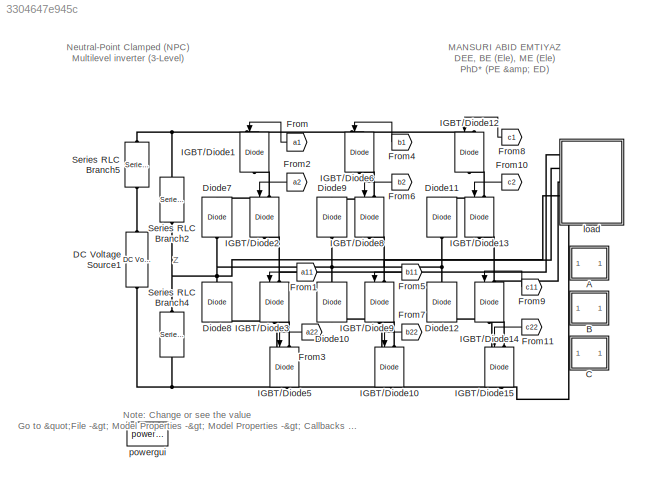
MODEL slx_3304647e945c
KIND model
CONFIG AbsTol = auto
CONFIG EnableMultiTasking = off
CONFIG FixedStep = 1e-6
CONFIG InitFcn = v=3000\nr=0.000001\nc=1000e-6\nl=314\ni=1000\nr1=1000\nt=1/3000\nma=2\nf=2*pi*50\np1=(2*pi)/3\np2=-(2*pi)/3
CONFIG MaxStep = 1e-4
CONFIG MinStep = auto
CONFIG RelTol = 1e-3
CONFIG SampleTimeConstraint = Unconstrained
CONFIG Solver = ode4
CONFIG SolverName = ode4
CONFIG StartTime = 0.0
CONFIG StopTime = 0.04
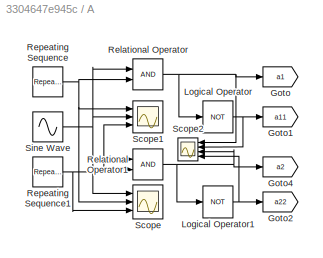
BLOCK [SubSystem] A
  Ports = []
  RequestExecContextInheritance = off
  Variant = off
BLOCK [Goto] A/Goto
  GotoTag = a1
  TagVisibility = global
BLOCK [Goto] A/Goto1
  GotoTag = a11
  TagVisibility = global
BLOCK [Goto] A/Goto2
  GotoTag = a22
  TagVisibility = global
BLOCK [Goto] A/Goto4
  GotoTag = a2
  TagVisibility = global
BLOCK [Logic] A/Logical Operator
  AllPortsSameDT = off
  Operator = NOT
  OutDataTypeStr = boolean
  Ports = [1, 1]
BLOCK [Logic] A/Logical Operator1
  AllPortsSameDT = off
  Operator = NOT
  OutDataTypeStr = boolean
  Ports = [1, 1]
BLOCK [RelationalOperator] A/Relational Operator
  InputSameDT = off
  OutDataTypeStr = boolean
  Ports = [2, 1]
  RndMeth = Simplest
BLOCK [RelationalOperator] A/Relational Operator1
  InputSameDT = off
  OutDataTypeStr = boolean
  Ports = [2, 1]
  RndMeth = Simplest
BLOCK [Reference] A/Repeating Sequence  REF=simulink/Sources/Repeating
Sequence
  Ports = [0, 1]
  SourceBlock = simulink/Sources/Repeating\nSequence
  SourceProductBaseCode = SL
  SourceProductName = Simulink
  SourceType = Repeating table
BLOCK [Reference] A/Repeating Sequence1  REF=simulink/Sources/Repeating
Sequence
  Ports = [0, 1]
  SourceBlock = simulink/Sources/Repeating\nSequence
  SourceProductBaseCode = SL
  SourceProductName = Simulink
  SourceType = Repeating table
BLOCK [Scope] A/Scope
  NumInputPorts = 3
  Ports = [3]
  ScopeSpecificationString = Simulink.scopes.TimeScopeBlockCfg('CurrentConfiguration', extmgr.ConfigurationSet(extmgr.Configuration('Core','General UI',true),extmgr.Configuration('Core','Source UI',true),extmgr.Configuration('Sources','WiredSimulink',true,'DataLoggingVariableName','ScopeData1'),extmgr.Configuration('Visuals','Time Domain',true,'SerializedDisplays',{struct('MinYLimReal','-2.5','MaxYLimReal','2.5','YLabelReal',...<+1414ch>
BLOCK [Scope] A/Scope1
  NumInputPorts = 3
  Ports = [3]
  ScopeSpecificationString = Simulink.scopes.TimeScopeBlockCfg('CurrentConfiguration', extmgr.ConfigurationSet(extmgr.Configuration('Core','General UI',true,'FigureColor',[1 1 1]),extmgr.Configuration('Core','Source UI',true),extmgr.Configuration('Sources','WiredSimulink',true,'DataLoggingVariableName','ScopeData1'),extmgr.Configuration('Visuals','Time Domain',true,'TimeAxisLabels','All','SerializedDisplays',{struct('MinYLimR...<+1810ch>
BLOCK [Scope] A/Scope2
  NumInputPorts = 4
  Ports = [4]
  ScopeSpecificationString = Simulink.scopes.TimeScopeBlockCfg('CurrentConfiguration', extmgr.ConfigurationSet(extmgr.Configuration('Core','General UI',true,'FigureColor',[1 1 1]),extmgr.Configuration('Core','Source UI',true),extmgr.Configuration('Sources','WiredSimulink',true,'DataLoggingVariableName','ScopeData2'),extmgr.Configuration('Visuals','Time Domain',true,'TimeAxisLabels','All','SerializedDisplays',{struct('MinYLimR...<+3983ch>
BLOCK [Sin] A/Sine Wave
  Amplitude = ma
  Frequency = f
  Ports = [0, 1]
  SampleTime = 0
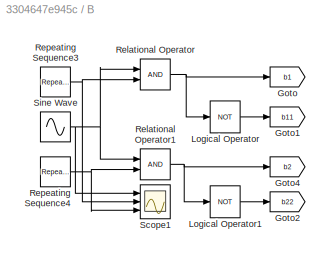
BLOCK [SubSystem] B
  Ports = []
  RequestExecContextInheritance = off
  Variant = off
BLOCK [Goto] B/Goto
  GotoTag = b1
  TagVisibility = global
BLOCK [Goto] B/Goto1
  GotoTag = b11
  TagVisibility = global
BLOCK [Goto] B/Goto2
  GotoTag = b22
  TagVisibility = global
BLOCK [Goto] B/Goto4
  GotoTag = b2
  TagVisibility = global
BLOCK [Logic] B/Logical Operator
  AllPortsSameDT = off
  Operator = NOT
  OutDataTypeStr = boolean
  Ports = [1, 1]
BLOCK [Logic] B/Logical Operator1
  AllPortsSameDT = off
  Operator = NOT
  OutDataTypeStr = boolean
  Ports = [1, 1]
BLOCK [RelationalOperator] B/Relational Operator
  InputSameDT = off
  OutDataTypeStr = boolean
  Ports = [2, 1]
  RndMeth = Simplest
BLOCK [RelationalOperator] B/Relational Operator1
  InputSameDT = off
  OutDataTypeStr = boolean
  Ports = [2, 1]
  RndMeth = Simplest
BLOCK [Reference] B/Repeating Sequence3  REF=simulink/Sources/Repeating
Sequence
  Ports = [0, 1]
  SourceBlock = simulink/Sources/Repeating\nSequence
  SourceProductBaseCode = SL
  SourceProductName = Simulink
  SourceType = Repeating table
BLOCK [Reference] B/Repeating Sequence4  REF=simulink/Sources/Repeating
Sequence
  Ports = [0, 1]
  SourceBlock = simulink/Sources/Repeating\nSequence
  SourceProductBaseCode = SL
  SourceProductName = Simulink
  SourceType = Repeating table
BLOCK [Scope] B/Scope1
  NumInputPorts = 3
  Ports = [3]
  ScopeSpecificationString = Simulink.scopes.TimeScopeBlockCfg('CurrentConfiguration', extmgr.ConfigurationSet(extmgr.Configuration('Core','General UI',true),extmgr.Configuration('Core','Source UI',true),extmgr.Configuration('Sources','WiredSimulink',true,'DataLoggingVariableName','ScopeData4'),extmgr.Configuration('Visuals','Time Domain',true,'SerializedDisplays',{struct('MinYLimReal','-2.5','MaxYLimReal','2.5','YLabelReal',...<+1415ch>
BLOCK [Sin] B/Sine Wave
  Amplitude = ma
  Frequency = f
  Phase = p2
  Ports = [0, 1]
  SampleTime = 0
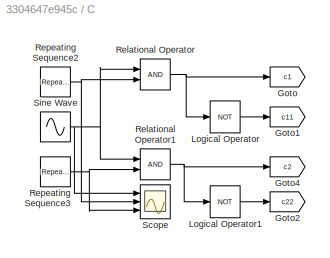
BLOCK [SubSystem] C
  Ports = []
  RequestExecContextInheritance = off
  Variant = off
BLOCK [Goto] C/Goto
  GotoTag = c1
  TagVisibility = global
BLOCK [Goto] C/Goto1
  GotoTag = c11
  TagVisibility = global
BLOCK [Goto] C/Goto2
  GotoTag = c22
  TagVisibility = global
BLOCK [Goto] C/Goto4
  GotoTag = c2
  TagVisibility = global
BLOCK [Logic] C/Logical Operator
  AllPortsSameDT = off
  Operator = NOT
  OutDataTypeStr = boolean
  Ports = [1, 1]
BLOCK [Logic] C/Logical Operator1
  AllPortsSameDT = off
  Operator = NOT
  OutDataTypeStr = boolean
  Ports = [1, 1]
BLOCK [RelationalOperator] C/Relational Operator
  InputSameDT = off
  OutDataTypeStr = boolean
  Ports = [2, 1]
  RndMeth = Simplest
BLOCK [RelationalOperator] C/Relational Operator1
  InputSameDT = off
  OutDataTypeStr = boolean
  Ports = [2, 1]
  RndMeth = Simplest
BLOCK [Reference] C/Repeating Sequence2  REF=simulink/Sources/Repeating
Sequence
  Ports = [0, 1]
  SourceBlock = simulink/Sources/Repeating\nSequence
  SourceProductBaseCode = SL
  SourceProductName = Simulink
  SourceType = Repeating table
BLOCK [Reference] C/Repeating Sequence3  REF=simulink/Sources/Repeating
Sequence
  Ports = [0, 1]
  SourceBlock = simulink/Sources/Repeating\nSequence
  SourceProductBaseCode = SL
  SourceProductName = Simulink
  SourceType = Repeating table
BLOCK [Scope] C/Scope
  NumInputPorts = 3
  Ports = [3]
  ScopeSpecificationString = Simulink.scopes.TimeScopeBlockCfg('CurrentConfiguration', extmgr.ConfigurationSet(extmgr.Configuration('Core','General UI',true),extmgr.Configuration('Core','Source UI',true),extmgr.Configuration('Sources','WiredSimulink',true,'DataLoggingVariableName','ScopeData2'),extmgr.Configuration('Visuals','Time Domain',true,'SerializedDisplays',{struct('MinYLimReal','-2.5','MaxYLimReal','2.5','YLabelReal',...<+1415ch>
BLOCK [Sin] C/Sine Wave
  Amplitude = ma
  Frequency = f
  Phase = p1
  Ports = [0, 1]
  SampleTime = 0
BLOCK [Reference] DC Voltage Source1  REF=powerlib/Electrical
Sources/DC Voltage Source
  Ports = [0, 0, 0, 0, 0, 1, 1]
  SourceBlock = powerlib/Electrical\nSources/DC Voltage Source
  SourceProductBaseCode = PS
  SourceProductName = Simscape Power Systems
  SourceType = DC Voltage Source
BLOCK [Reference] Diode10  REF=powerlib/Power
Electronics/Diode
  Ports = [0, 0, 0, 0, 0, 1, 1]
  SourceBlock = powerlib/Power\nElectronics/Diode
  SourceProductBaseCode = PS
  SourceProductName = Simscape Power Systems
  SourceType = Diode
BLOCK [Reference] Diode11  REF=powerlib/Power
Electronics/Diode
  Ports = [0, 0, 0, 0, 0, 1, 1]
  SourceBlock = powerlib/Power\nElectronics/Diode
  SourceProductBaseCode = PS
  SourceProductName = Simscape Power Systems
  SourceType = Diode
BLOCK [Reference] Diode12  REF=powerlib/Power
Electronics/Diode
  Ports = [0, 0, 0, 0, 0, 1, 1]
  SourceBlock = powerlib/Power\nElectronics/Diode
  SourceProductBaseCode = PS
  SourceProductName = Simscape Power Systems
  SourceType = Diode
BLOCK [Reference] Diode7  REF=powerlib/Power
Electronics/Diode
  Ports = [0, 0, 0, 0, 0, 1, 1]
  SourceBlock = powerlib/Power\nElectronics/Diode
  SourceProductBaseCode = PS
  SourceProductName = Simscape Power Systems
  SourceType = Diode
BLOCK [Reference] Diode8  REF=powerlib/Power
Electronics/Diode
  Ports = [0, 0, 0, 0, 0, 1, 1]
  SourceBlock = powerlib/Power\nElectronics/Diode
  SourceProductBaseCode = PS
  SourceProductName = Simscape Power Systems
  SourceType = Diode
BLOCK [Reference] Diode9  REF=powerlib/Power
Electronics/Diode
  Ports = [0, 0, 0, 0, 0, 1, 1]
  SourceBlock = powerlib/Power\nElectronics/Diode
  SourceProductBaseCode = PS
  SourceProductName = Simscape Power Systems
  SourceType = Diode
BLOCK [From] From
  GotoTag = a1
  TagVisibility = global
BLOCK [From] From1
  GotoTag = a11
  TagVisibility = global
BLOCK [From] From10
  GotoTag = c2
  TagVisibility = global
BLOCK [From] From11
  GotoTag = c22
  TagVisibility = global
BLOCK [From] From2
  GotoTag = a2
  TagVisibility = global
BLOCK [From] From3
  GotoTag = a22
  TagVisibility = global
BLOCK [From] From4
  GotoTag = b1
  TagVisibility = global
BLOCK [From] From5
  GotoTag = b11
  TagVisibility = global
BLOCK [From] From6
  GotoTag = b2
  TagVisibility = global
BLOCK [From] From7
  GotoTag = b22
  TagVisibility = global
BLOCK [From] From8
  GotoTag = c1
  TagVisibility = global
BLOCK [From] From9
  GotoTag = c11
  TagVisibility = global
BLOCK [Reference] IGBT//Diode1  REF=powerlib/Power
Electronics/IGBT//Diode
  Ports = [1, 0, 0, 0, 0, 1, 1]
  SourceBlock = powerlib/Power\nElectronics/IGBT//Diode
  SourceProductBaseCode = PS
  SourceProductName = Simscape Power Systems
  SourceType = IGBT/Diode
BLOCK [Reference] IGBT//Diode10  REF=powerlib/Power
Electronics/IGBT//Diode
  Ports = [1, 0, 0, 0, 0, 1, 1]
  SourceBlock = powerlib/Power\nElectronics/IGBT//Diode
  SourceProductBaseCode = PS
  SourceProductName = Simscape Power Systems
  SourceType = IGBT/Diode
BLOCK [Reference] IGBT//Diode12  REF=powerlib/Power
Electronics/IGBT//Diode
  Ports = [1, 0, 0, 0, 0, 1, 1]
  SourceBlock = powerlib/Power\nElectronics/IGBT//Diode
  SourceProductBaseCode = PS
  SourceProductName = Simscape Power Systems
  SourceType = IGBT/Diode
BLOCK [Reference] IGBT//Diode13  REF=powerlib/Power
Electronics/IGBT//Diode
  Ports = [1, 0, 0, 0, 0, 1, 1]
  SourceBlock = powerlib/Power\nElectronics/IGBT//Diode
  SourceProductBaseCode = PS
  SourceProductName = Simscape Power Systems
  SourceType = IGBT/Diode
BLOCK [Reference] IGBT//Diode14  REF=powerlib/Power
Electronics/IGBT//Diode
  Ports = [1, 0, 0, 0, 0, 1, 1]
  SourceBlock = powerlib/Power\nElectronics/IGBT//Diode
  SourceProductBaseCode = PS
  SourceProductName = Simscape Power Systems
  SourceType = IGBT/Diode
BLOCK [Reference] IGBT//Diode15  REF=powerlib/Power
Electronics/IGBT//Diode
  Ports = [1, 0, 0, 0, 0, 1, 1]
  SourceBlock = powerlib/Power\nElectronics/IGBT//Diode
  SourceProductBaseCode = PS
  SourceProductName = Simscape Power Systems
  SourceType = IGBT/Diode
BLOCK [Reference] IGBT//Diode2  REF=powerlib/Power
Electronics/IGBT//Diode
  Ports = [1, 0, 0, 0, 0, 1, 1]
  SourceBlock = powerlib/Power\nElectronics/IGBT//Diode
  SourceProductBaseCode = PS
  SourceProductName = Simscape Power Systems
  SourceType = IGBT/Diode
BLOCK [Reference] IGBT//Diode3  REF=powerlib/Power
Electronics/IGBT//Diode
  Ports = [1, 0, 0, 0, 0, 1, 1]
  SourceBlock = powerlib/Power\nElectronics/IGBT//Diode
  SourceProductBaseCode = PS
  SourceProductName = Simscape Power Systems
  SourceType = IGBT/Diode
BLOCK [Reference] IGBT//Diode5  REF=powerlib/Power
Electronics/IGBT//Diode
  Ports = [1, 0, 0, 0, 0, 1, 1]
  SourceBlock = powerlib/Power\nElectronics/IGBT//Diode
  SourceProductBaseCode = PS
  SourceProductName = Simscape Power Systems
  SourceType = IGBT/Diode
BLOCK [Reference] IGBT//Diode6  REF=powerlib/Power
Electronics/IGBT//Diode
  Ports = [1, 0, 0, 0, 0, 1, 1]
  SourceBlock = powerlib/Power\nElectronics/IGBT//Diode
  SourceProductBaseCode = PS
  SourceProductName = Simscape Power Systems
  SourceType = IGBT/Diode
BLOCK [Reference] IGBT//Diode8  REF=powerlib/Power
Electronics/IGBT//Diode
  Ports = [1, 0, 0, 0, 0, 1, 1]
  SourceBlock = powerlib/Power\nElectronics/IGBT//Diode
  SourceProductBaseCode = PS
  SourceProductName = Simscape Power Systems
  SourceType = IGBT/Diode
BLOCK [Reference] IGBT//Diode9  REF=powerlib/Power
Electronics/IGBT//Diode
  Ports = [1, 0, 0, 0, 0, 1, 1]
  SourceBlock = powerlib/Power\nElectronics/IGBT//Diode
  SourceProductBaseCode = PS
  SourceProductName = Simscape Power Systems
  SourceType = IGBT/Diode
BLOCK [Reference] Series RLC Branch2  REF=powerlib/Elements/Series RLC Branch
  Ports = [0, 0, 0, 0, 0, 1, 1]
  SourceBlock = powerlib/Elements/Series RLC Branch
  SourceProductBaseCode = PS
  SourceProductName = Simscape Power Systems
  SourceType = Series RLC Branch
BLOCK [Reference] Series RLC Branch4  REF=powerlib/Elements/Series RLC Branch
  Ports = [0, 0, 0, 0, 0, 1, 1]
  SourceBlock = powerlib/Elements/Series RLC Branch
  SourceProductBaseCode = PS
  SourceProductName = Simscape Power Systems
  SourceType = Series RLC Branch
BLOCK [Reference] Series RLC Branch5  REF=powerlib/Elements/Series RLC Branch
  Ports = [0, 0, 0, 0, 0, 1, 1]
  SourceBlock = powerlib/Elements/Series RLC Branch
  SourceProductBaseCode = PS
  SourceProductName = Simscape Power Systems
  SourceType = Series RLC Branch
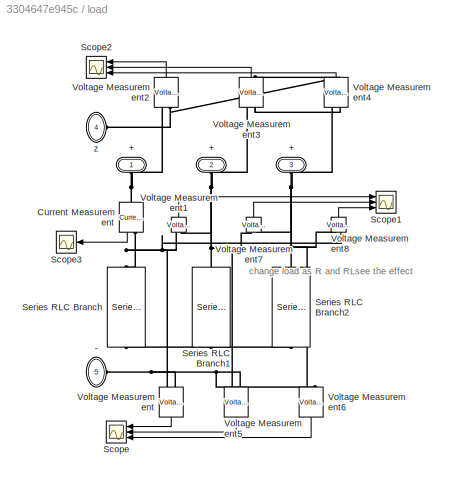
BLOCK [SubSystem] load
  Ports = [0, 0, 0, 0, 0, 5]
  RequestExecContextInheritance = off
  Variant = off
BLOCK [PMIOPort] load/+
  Port = 1
  Side = Left
BLOCK [PMIOPort] load/+  
  Port = 2
  Side = Left
BLOCK [PMIOPort] load/+   
  Port = 3
  Side = Left
BLOCK [PMIOPort] load/-
  Port = 5
  Side = Left
BLOCK [Reference] load/Current Measurement  REF=powerlib/Measurements/Current Measurement
  Ports = [0, 1, 0, 0, 0, 1, 1]
  SourceBlock = powerlib/Measurements/Current Measurement
  SourceProductBaseCode = PS
  SourceProductName = Simscape Power Systems
  SourceType = Current Measurement
  UserDataPersistent = on
BLOCK [Scope] load/Scope
  NumInputPorts = 3
  Ports = [3]
  ScopeSpecificationString = Simulink.scopes.TimeScopeBlockCfg('CurrentConfiguration', extmgr.ConfigurationSet(extmgr.Configuration('Core','General UI',true,'FigureColor',[1 1 1]),extmgr.Configuration('Core','Source UI',true),extmgr.Configuration('Sources','WiredSimulink',true,'DataLoggingDecimation','1','DataLoggingVariableName','c','DataLogging',true),extmgr.Configuration('Visuals','Time Domain',true,'TimeAxisLabels','All',...<+4218ch>
BLOCK [Scope] load/Scope1
  NumInputPorts = 3
  Ports = [3]
  ScopeSpecificationString = Simulink.scopes.TimeScopeBlockCfg('CurrentConfiguration', extmgr.ConfigurationSet(extmgr.Configuration('Core','General UI',true,'FigureColor',[1 1 1]),extmgr.Configuration('Core','Source UI',true),extmgr.Configuration('Sources','WiredSimulink',true,'DataLoggingDecimation','1','DataLoggingVariableName','b','DataLogging',true),extmgr.Configuration('Visuals','Time Domain',true,'TimeAxisLabels','All',...<+4248ch>
BLOCK [Scope] load/Scope2
  NumInputPorts = 3
  Ports = [3]
  ScopeSpecificationString = Simulink.scopes.TimeScopeBlockCfg('CurrentConfiguration', extmgr.ConfigurationSet(extmgr.Configuration('Core','General UI',true,'FigureColor',[1 1 1]),extmgr.Configuration('Core','Source UI',true),extmgr.Configuration('Sources','WiredSimulink',true,'DataLoggingDecimation','1','DataLoggingVariableName','a','DataLogging',true),extmgr.Configuration('Visuals','Time Domain',true,'TimeAxisLabels','All',...<+4181ch>
BLOCK [Scope] load/Scope3
  NumInputPorts = 1
  Ports = [1]
  ScopeSpecificationString = Simulink.scopes.TimeScopeBlockCfg('CurrentConfiguration', extmgr.ConfigurationSet(extmgr.Configuration('Core','General UI',true,'FigureColor',[1 1 1]),extmgr.Configuration('Core','Source UI',true),extmgr.Configuration('Sources','WiredSimulink',true,'DataLoggingDecimation','1','DataLoggingVariableName','d','DataLogging',true),extmgr.Configuration('Visuals','Time Domain',true,'TimeAxisLabels','All',...<+2595ch>
BLOCK [Reference] load/Series RLC Branch  REF=powerlib/Elements/Series RLC Branch
  Ports = [0, 0, 0, 0, 0, 1, 1]
  SourceBlock = powerlib/Elements/Series RLC Branch
  SourceProductBaseCode = PS
  SourceProductName = Simscape Power Systems
  SourceType = Series RLC Branch
BLOCK [Reference] load/Series RLC Branch1  REF=powerlib/Elements/Series RLC Branch
  Ports = [0, 0, 0, 0, 0, 1, 1]
  SourceBlock = powerlib/Elements/Series RLC Branch
  SourceProductBaseCode = PS
  SourceProductName = Simscape Power Systems
  SourceType = Series RLC Branch
BLOCK [Reference] load/Series RLC Branch2  REF=powerlib/Elements/Series RLC Branch
  Ports = [0, 0, 0, 0, 0, 1, 1]
  SourceBlock = powerlib/Elements/Series RLC Branch
  SourceProductBaseCode = PS
  SourceProductName = Simscape Power Systems
  SourceType = Series RLC Branch
BLOCK [Reference] load/Voltage Measurement  REF=powerlib/Measurements/Voltage Measurement
  Ports = [0, 1, 0, 0, 0, 2]
  SourceBlock = powerlib/Measurements/Voltage Measurement
  SourceProductBaseCode = PS
  SourceProductName = Simscape Power Systems
  SourceType = Voltage Measurement
  UserDataPersistent = on
BLOCK [Reference] load/Voltage Measurement1  REF=powerlib/Measurements/Voltage Measurement
  Ports = [0, 1, 0, 0, 0, 2]
  SourceBlock = powerlib/Measurements/Voltage Measurement
  SourceProductBaseCode = PS
  SourceProductName = Simscape Power Systems
  SourceType = Voltage Measurement
  UserDataPersistent = on
BLOCK [Reference] load/Voltage Measurement2  REF=powerlib/Measurements/Voltage Measurement
  Ports = [0, 1, 0, 0, 0, 2]
  SourceBlock = powerlib/Measurements/Voltage Measurement
  SourceProductBaseCode = PS
  SourceProductName = Simscape Power Systems
  SourceType = Voltage Measurement
  UserDataPersistent = on
BLOCK [Reference] load/Voltage Measurement3  REF=powerlib/Measurements/Voltage Measurement
  Ports = [0, 1, 0, 0, 0, 2]
  SourceBlock = powerlib/Measurements/Voltage Measurement
  SourceProductBaseCode = PS
  SourceProductName = Simscape Power Systems
  SourceType = Voltage Measurement
  UserDataPersistent = on
BLOCK [Reference] load/Voltage Measurement4  REF=powerlib/Measurements/Voltage Measurement
  Ports = [0, 1, 0, 0, 0, 2]
  SourceBlock = powerlib/Measurements/Voltage Measurement
  SourceProductBaseCode = PS
  SourceProductName = Simscape Power Systems
  SourceType = Voltage Measurement
  UserDataPersistent = on
BLOCK [Reference] load/Voltage Measurement5  REF=powerlib/Measurements/Voltage Measurement
  Ports = [0, 1, 0, 0, 0, 2]
  SourceBlock = powerlib/Measurements/Voltage Measurement
  SourceProductBaseCode = PS
  SourceProductName = Simscape Power Systems
  SourceType = Voltage Measurement
  UserDataPersistent = on
BLOCK [Reference] load/Voltage Measurement6  REF=powerlib/Measurements/Voltage Measurement
  Ports = [0, 1, 0, 0, 0, 2]
  SourceBlock = powerlib/Measurements/Voltage Measurement
  SourceProductBaseCode = PS
  SourceProductName = Simscape Power Systems
  SourceType = Voltage Measurement
  UserDataPersistent = on
BLOCK [Reference] load/Voltage Measurement7  REF=powerlib/Measurements/Voltage Measurement
  Ports = [0, 1, 0, 0, 0, 2]
  SourceBlock = powerlib/Measurements/Voltage Measurement
  SourceProductBaseCode = PS
  SourceProductName = Simscape Power Systems
  SourceType = Voltage Measurement
  UserDataPersistent = on
BLOCK [Reference] load/Voltage Measurement8  REF=powerlib/Measurements/Voltage Measurement
  Ports = [0, 1, 0, 0, 0, 2]
  SourceBlock = powerlib/Measurements/Voltage Measurement
  SourceProductBaseCode = PS
  SourceProductName = Simscape Power Systems
  SourceType = Voltage Measurement
  UserDataPersistent = on
BLOCK [PMIOPort] load/z
  Port = 4
  Side = Left
BLOCK [Reference] powergui  REF=powerlib/powergui
  Ports = []
  Priority = 1
  SourceBlock = powerlib/powergui
  SourceProductBaseCode = PS
  SourceProductName = Simscape Power Systems
  SourceType = PSB option menu block
ANNOTATION (root): Neutral-Point Clamped (NPC) Multilevel inverter (3-Level)
ANNOTATION (root): Z
ANNOTATION (root): MANSURI ABID EMTIYAZ DEE, BE (Ele), ME (Ele) PhD* (PE & ED)
ANNOTATION (root): Note: Change or see the value Go to "File -> Model Properties -> Model Properties -> Callbacks -> InitFcn"
ANNOTATION load: change load as R and RLsee the effect
NET A/Logical Operator1:1 -> A/Goto2:1, A/Scope2:4
NET A/Logical Operator:1 -> A/Goto1:1, A/Scope2:2
NET A/Relational Operator1:1 -> A/Goto4:1, A/Logical Operator1:1, A/Scope2:3
NET A/Relational Operator:1 -> A/Goto:1, A/Logical Operator:1, A/Scope2:1
NET A/Repeating Sequence1:1 -> A/Relational Operator1:2, A/Scope1:3, A/Scope:3
NET A/Repeating Sequence:1 -> A/Relational Operator:2, A/Scope1:1, A/Scope:2
NET A/Sine Wave:1 -> A/Relational Operator1:1, A/Relational Operator:1, A/Scope1:2, A/Scope:1
LINE B/Logical Operator1:1 -> B/Goto2:1
LINE B/Logical Operator:1 -> B/Goto1:1
NET B/Relational Operator1:1 -> B/Goto4:1, B/Logical Operator1:1
NET B/Relational Operator:1 -> B/Goto:1, B/Logical Operator:1
NET B/Repeating Sequence3:1 -> B/Relational Operator:2, B/Scope1:2
NET B/Repeating Sequence4:1 -> B/Relational Operator1:2, B/Scope1:3
NET B/Sine Wave:1 -> B/Relational Operator1:1, B/Relational Operator:1, B/Scope1:1
LINE C/Logical Operator1:1 -> C/Goto2:1
LINE C/Logical Operator:1 -> C/Goto1:1
NET C/Relational Operator1:1 -> C/Goto4:1, C/Logical Operator1:1
NET C/Relational Operator:1 -> C/Goto:1, C/Logical Operator:1
NET C/Repeating Sequence2:1 -> C/Relational Operator:2, C/Scope:2
NET C/Repeating Sequence3:1 -> C/Relational Operator1:2, C/Scope:3
NET C/Sine Wave:1 -> C/Relational Operator1:1, C/Relational Operator:1, C/Scope:1
LINE From10:1 -> IGBT//Diode13:1
LINE From11:1 -> IGBT//Diode15:1
LINE From1:1 -> IGBT//Diode3:1
LINE From2:1 -> IGBT//Diode2:1
LINE From3:1 -> IGBT//Diode5:1
LINE From4:1 -> IGBT//Diode6:1
LINE From5:1 -> IGBT//Diode9:1
LINE From6:1 -> IGBT//Diode8:1
LINE From7:1 -> IGBT//Diode10:1
LINE From8:1 -> IGBT//Diode12:1
LINE From9:1 -> IGBT//Diode14:1
LINE From:1 -> IGBT//Diode1:1
LINE load/Current Measurement:1 -> load/Scope3:1
LINE load/Voltage Measurement1:1 -> load/Scope1:1
LINE load/Voltage Measurement2:1 -> load/Scope2:1
LINE load/Voltage Measurement3:1 -> load/Scope2:2
LINE load/Voltage Measurement4:1 -> load/Scope2:3
LINE load/Voltage Measurement5:1 -> load/Scope:2
LINE load/Voltage Measurement6:1 -> load/Scope:3
LINE load/Voltage Measurement7:1 -> load/Scope1:2
LINE load/Voltage Measurement8:1 -> load/Scope1:3
LINE load/Voltage Measurement:1 -> load/Scope:1
PNET net1: DC Voltage Source1:LConn1 -- IGBT//Diode10:RConn1 -- IGBT//Diode15:RConn1 -- IGBT//Diode5:RConn1 -- Series RLC Branch4:RConn1 -- load:LConn5
PLINE DC Voltage Source1:RConn1 -- Series RLC Branch5:LConn1
PNET net2: Diode10:LConn1 -- IGBT//Diode10:LConn1 -- IGBT//Diode9:RConn1
PNET net3: Diode10:RConn1 -- Diode11:LConn1 -- Diode12:RConn1 -- Diode7:LConn1 -- Diode8:RConn1 -- Diode9:LConn1 -- Series RLC Branch2:RConn1 -- Series RLC Branch4:LConn1 -- load:LConn4
PNET net4: Diode11:RConn1 -- IGBT//Diode12:RConn1 -- IGBT//Diode13:LConn1
PNET net5: Diode12:LConn1 -- IGBT//Diode14:RConn1 -- IGBT//Diode15:LConn1
PNET net6: Diode7:RConn1 -- IGBT//Diode1:RConn1 -- IGBT//Diode2:LConn1
PNET net7: Diode8:LConn1 -- IGBT//Diode3:RConn1 -- IGBT//Diode5:LConn1
PNET net8: Diode9:RConn1 -- IGBT//Diode6:RConn1 -- IGBT//Diode8:LConn1
PNET net9: IGBT//Diode12:LConn1 -- IGBT//Diode1:LConn1 -- IGBT//Diode6:LConn1 -- Series RLC Branch2:LConn1 -- Series RLC Branch5:RConn1
PNET net10: IGBT//Diode13:RConn1 -- IGBT//Diode14:LConn1 -- load:LConn3
PNET net11: IGBT//Diode2:RConn1 -- IGBT//Diode3:LConn1 -- load:LConn1
PNET net12: IGBT//Diode8:RConn1 -- IGBT//Diode9:LConn1 -- load:LConn2
PNET net13: load/+   :RConn1 -- load/Series RLC Branch2:LConn1 -- load/Voltage Measurement4:LConn1 -- load/Voltage Measurement6:LConn1 -- load/Voltage Measurement7:LConn2 -- load/Voltage Measurement8:LConn1
PNET net14: load/+  :RConn1 -- load/Series RLC Branch1:LConn1 -- load/Voltage Measurement1:LConn2 -- load/Voltage Measurement3:LConn1 -- load/Voltage Measurement5:LConn1 -- load/Voltage Measurement7:LConn1
PNET net15: load/+:RConn1 -- load/Current Measurement:LConn1 -- load/Voltage Measurement2:LConn1
PNET net16: load/-:RConn1 -- load/Voltage Measurement5:LConn2 -- load/Voltage Measurement6:LConn2 -- load/Voltage Measurement:LConn2
PNET net17: load/Current Measurement:RConn1 -- load/Series RLC Branch:LConn1 -- load/Voltage Measurement1:LConn1 -- load/Voltage Measurement8:LConn2 -- load/Voltage Measurement:LConn1
PNET net18: load/Series RLC Branch1:RConn1 -- load/Series RLC Branch2:RConn1 -- load/Series RLC Branch:RConn1
PNET net19: load/Voltage Measurement2:LConn2 -- load/Voltage Measurement3:LConn2 -- load/Voltage Measurement4:LConn2 -- load/z:RConn1
note: NET lines group one-source signal fan-out (src -> all destinations, sorted); 1:1 wires keep LINE; PNET lines group multi-terminal physical nets as a canonical sorted terminal list (undirected conserving connections); 2-terminal nets keep the pairwise PLINE form
